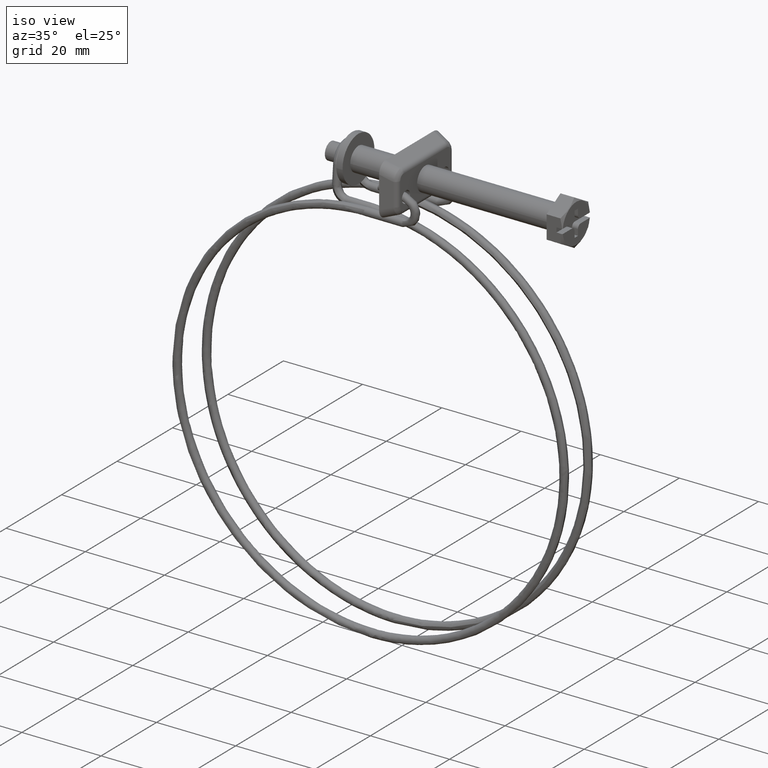
[diagram: clean part render]
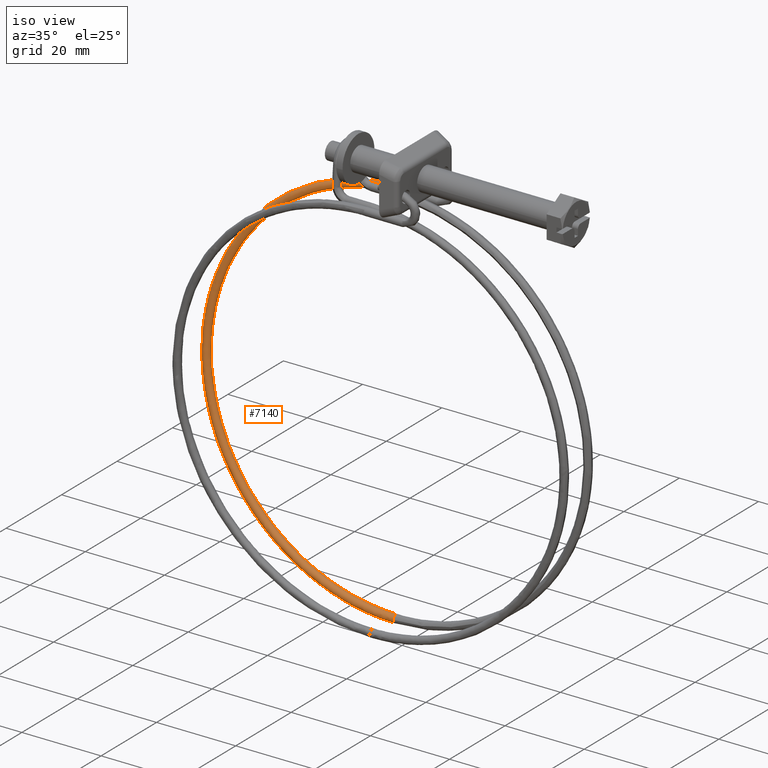
[diagram: same view with one face highlighted and labeled with its STEP entity id]
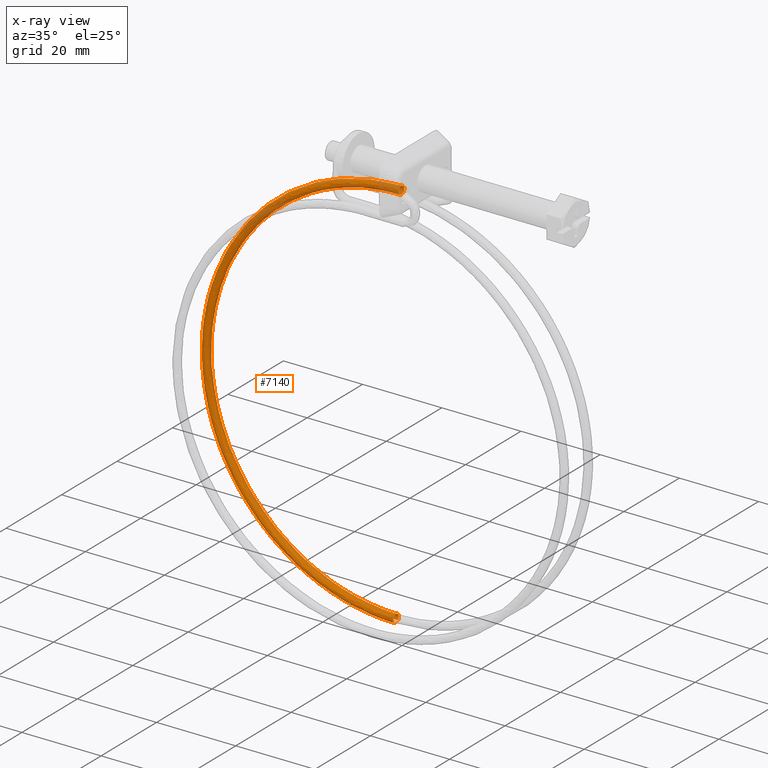
[diagram: x-ray of the same camera — body ghosted, the highlighted face saturated]
A machine part, iso view. The second image highlights one B-rep face of the part: STEP entity #7140.
The next image is the same camera in x-ray: the body ghosted, the highlighted face saturated — about 8% of this face is hidden behind the body in this view.
In plain terms, the highlighted face is a freeform B-spline surface patch.
Its self-contained STEP definition (entity closure, byte-faithful):
#4406=CARTESIAN_POINT('',(-44.550000000001013,5.997616362328278,-6.900553868632652));
#4407=VERTEX_POINT('',#4406);
#4408=CARTESIAN_POINT('',(-44.550000000001013,6.351426395837967,-6.850859404055653));
#4409=VERTEX_POINT('',#4408);
#4410=CARTESIAN_POINT('',(-44.550000000001013,5.997616362328278,-6.900553868632652));
#4411=CARTESIAN_POINT('',(-44.550000000001013,6.111384008571020,-6.863181264922809));
#4412=CARTESIAN_POINT('',(-44.550000000001013,6.231704666802331,-6.845746385737686));
#4413=CARTESIAN_POINT('',(-44.550000000001013,6.351426395837967,-6.850859404055653));
#4414=B_SPLINE_CURVE_WITH_KNOTS('',3,(#4410,#4411,#4412,#4413),.UNSPECIFIED.,.F.,.U.,(4,4),(0.942811831421861,1.0),.UNSPECIFIED.);
#4415=EDGE_CURVE('',#4407,#4409,#4414,.T.);
#4468=CARTESIAN_POINT('',(-44.549999999374727,5.310232866336376,-7.869648376759071));
#4469=VERTEX_POINT('',#4468);
#4475=CARTESIAN_POINT('',(-44.550000000001013,6.268575415068714,-8.849142595944528));
#4476=VERTEX_POINT('',#4475);
#4477=CARTESIAN_POINT('',(-44.550000000001013,6.268575415068714,-8.849142595944528));
#4478=CARTESIAN_POINT('',(-44.549999999913858,6.006995341889742,-8.838297547081888));
#4479=CARTESIAN_POINT('',(-44.549999999793513,5.751488491244450,-8.719838742837499));
#4480=CARTESIAN_POINT('',(-44.549999999563617,5.410683382595896,-8.349566788580003));
#4481=CARTESIAN_POINT('',(-44.549999999455238,5.315545804361695,-8.110863919542913));
#4482=CARTESIAN_POINT('',(-44.549999999374727,5.310232866336376,-7.869648376759071));
#4483=B_SPLINE_CURVE_WITH_KNOTS('',3,(#4477,#4478,#4479,#4480,#4481,#4482),.UNSPECIFIED.,.F.,.U.,(4,2,4),(0.500000000000000,0.625000000000000,0.740274391635181),.UNSPECIFIED.);
#4484=EDGE_CURVE('',#4476,#4469,#4483,.T.);
#4486=CARTESIAN_POINT('',(-44.550000000001013,7.066681206299512,-7.196249796183009));
#4487=VERTEX_POINT('',#4486);
#4488=CARTESIAN_POINT('',(-44.550000000001013,7.066681206299512,-7.196249796183009));
#4489=CARTESIAN_POINT('',(-44.550000000001013,7.230665532946784,-7.386573870000847));
#4490=CARTESIAN_POINT('',(-44.550000000000992,7.319553846201949,-7.640315216456886));
#4491=CARTESIAN_POINT('',(-44.550000000001013,7.298297333375800,-8.153001148527638));
#4492=CARTESIAN_POINT('',(-44.550000000001020,7.179838364557108,-8.408500520314938));
#4493=CARTESIAN_POINT('',(-44.550000000001013,6.794578551735394,-8.763085565730867));
#4494=CARTESIAN_POINT('',(-44.550000000001013,6.530150073211630,-8.859987763966505));
#4495=CARTESIAN_POINT('',(-44.550000000001013,6.268575415068711,-8.849142595944528));
#4496=B_SPLINE_CURVE_WITH_KNOTS('',3,(#4488,#4489,#4490,#4491,#4492,#4493,#4494,#4495),.UNSPECIFIED.,.F.,.U.,(4,2,2,4),(0.130000190141398,0.250000000000001,0.375000000000001,0.500000000000000),.UNSPECIFIED.);
#4497=EDGE_CURVE('',#4487,#4476,#4496,.T.);
#4525=CARTESIAN_POINT('',(-44.549999999374727,5.310232866336376,-7.869648376759071));
#4526=CARTESIAN_POINT('',(-44.549999999383353,5.309783493014188,-7.849290882775227));
#4527=CARTESIAN_POINT('',(-44.549999999392163,5.309973457286755,-7.828915354592088));
#4528=CARTESIAN_POINT('',(-44.549999999516949,5.321640020905194,-7.546897328365557));
#4529=CARTESIAN_POINT('',(-44.549999999662958,5.440072767325695,-7.291290795225113));
#4530=CARTESIAN_POINT('',(-44.549999999871197,5.737165964685468,-7.017665174941764));
#4531=CARTESIAN_POINT('',(-44.549999999940717,5.862784524697105,-6.945092813310755));
#4532=CARTESIAN_POINT('',(-44.550000000001013,5.997616362328278,-6.900553868632652));
#4533=B_SPLINE_CURVE_WITH_KNOTS('',3,(#4525,#4526,#4527,#4528,#4529,#4530,#4531,#4532),.UNSPECIFIED.,.F.,.U.,(4,2,2,4),(0.740274391635181,0.750000000000000,0.875000000000000,0.942811831421861),.UNSPECIFIED.);
#4534=EDGE_CURVE('',#4469,#4407,#4533,.T.);
#6104=CARTESIAN_POINT('',(-44.549999999999052,4.300002000002107,-103.850001000000010));
#6105=VERTEX_POINT('',#6104);
#6106=CARTESIAN_POINT('',(-44.549999999922072,3.302485887032278,-104.780271342116290));
#6107=VERTEX_POINT('',#6106);
#6108=CARTESIAN_POINT('',(-44.549999999999052,4.300002000002107,-103.850001000000010));
#6109=CARTESIAN_POINT('',(-44.549999999988252,4.038195655371372,-103.850000495566110));
#6110=CARTESIAN_POINT('',(-44.549999999973359,3.777998799464806,-103.957772896960290));
#6111=CARTESIAN_POINT('',(-44.549999999945143,3.424196145411115,-104.311556064557190));
#6112=CARTESIAN_POINT('',(-44.549999999931927,3.319730377689378,-104.542534340344900));
#6113=CARTESIAN_POINT('',(-44.549999999922072,3.302485887032278,-104.780271342116290));
#6114=B_SPLINE_CURVE_WITH_KNOTS('',3,(#6108,#6109,#6110,#6111,#6112,#6113),.UNSPECIFIED.,.F.,.U.,(4,2,4),(0.500000000000000,0.625000000000000,0.738888458198832),.UNSPECIFIED.);
#6115=EDGE_CURVE('',#6105,#6107,#6114,.T.);
#6136=CARTESIAN_POINT('',(-44.550013567226713,4.287434287090918,-105.849920169598700));
#6137=VERTEX_POINT('',#6136);
#6153=CARTESIAN_POINT('',(-44.549999999999052,4.300002000002107,-105.850001000000010));
#6154=VERTEX_POINT('',#6153);
#6155=CARTESIAN_POINT('',(-44.550013567226713,4.287434287090918,-105.849920169598700));
#6156=CARTESIAN_POINT('',(-44.550009045284433,4.291622911119429,-105.849974632451800));
#6157=CARTESIAN_POINT('',(-44.550004522766592,4.295812249115727,-105.850001617474210));
#6158=CARTESIAN_POINT('',(-44.549999999999052,4.300002000002107,-105.850001000000010));
#6159=B_SPLINE_CURVE_WITH_KNOTS('',3,(#6155,#6156,#6157,#6158),.UNSPECIFIED.,.F.,.U.,(4,4),(0.997999545185233,1.0),.UNSPECIFIED.);
#6160=EDGE_CURVE('',#6137,#6154,#6159,.T.);
#6162=CARTESIAN_POINT('',(-44.549999999999052,5.028950799201402,-105.534536873659500));
#6163=VERTEX_POINT('',#6162);
#6173=CARTESIAN_POINT('',(-44.549999999999052,5.028950799201402,-105.534536873659500));
#6174=CARTESIAN_POINT('',(-44.549999999999052,5.200678629127689,-105.351169305945310));
#6175=CARTESIAN_POINT('',(-44.549999999999052,5.300002000002110,-105.101328014056090));
#6176=CARTESIAN_POINT('',(-44.549999999999052,5.300002000002110,-104.588201612201000));
#6177=CARTESIAN_POINT('',(-44.549999999999052,5.192228903611920,-104.328014341236790));
#6178=CARTESIAN_POINT('',(-44.549999999999052,4.821988658765391,-103.957774096390200));
#6179=CARTESIAN_POINT('',(-44.549999999999052,4.561801387801260,-103.850001000000010));
#6180=CARTESIAN_POINT('',(-44.549999999999052,4.300002000002107,-103.850001000000010));
#6181=B_SPLINE_CURVE_WITH_KNOTS('',3,(#6173,#6174,#6175,#6176,#6177,#6178,#6179,#6180),.UNSPECIFIED.,.F.,.U.,(4,2,2,4),(0.130000190141371,0.250000000000000,0.375000000000000,0.500000000000000),.UNSPECIFIED.);
#6182=EDGE_CURVE('',#6163,#6105,#6181,.T.);
#6235=CARTESIAN_POINT('',(-44.549999999922072,3.302485887032278,-104.780271342116290));
#6236=CARTESIAN_POINT('',(-44.550000148507991,3.300804588169331,-104.803466287269300));
#6237=CARTESIAN_POINT('',(-44.550000302782962,3.299953544922329,-104.826725569222700));
#6238=CARTESIAN_POINT('',(-44.550002259588823,3.299960689550695,-105.111797701208700));
#6239=CARTESIAN_POINT('',(-44.550004726756313,3.407742793985734,-105.371985962489600));
#6240=CARTESIAN_POINT('',(-44.550009569201791,3.775038123896113,-105.739265555563700));
#6241=CARTESIAN_POINT('',(-44.550011916213371,4.029887899585490,-105.846532856363200));
#6242=CARTESIAN_POINT('',(-44.550013567226713,4.287434287090918,-105.849920169598700));
#6243=B_SPLINE_CURVE_WITH_KNOTS('',3,(#6235,#6236,#6237,#6238,#6239,#6240,#6241,#6242),.UNSPECIFIED.,.F.,.U.,(4,2,2,4),(0.738888458198832,0.750000000000000,0.875000000000000,0.997999545185233),.UNSPECIFIED.);
#6244=EDGE_CURVE('',#6107,#6137,#6243,.T.);
#6799=CARTESIAN_POINT('',(-44.550000000000999,7.066680426793061,-7.196248891469288));
#6800=CARTESIAN_POINT('',(-44.550000000000999,7.230665251257104,-7.386573065887060));
#6801=CARTESIAN_POINT('',(-44.550000000000999,7.319553862699094,-7.640314818567237));
#6802=CARTESIAN_POINT('',(-44.550000000000999,7.298297333376170,-8.153001148527350));
#6803=CARTESIAN_POINT('',(-44.550000000000999,7.179838364557550,-8.408500520314682));
#6804=CARTESIAN_POINT('',(-44.550000000000999,6.794578551735941,-8.763085565730719));
#6805=CARTESIAN_POINT('',(-44.550000000000999,6.530150073212200,-8.859987763966451));
#6806=CARTESIAN_POINT('',(-44.550000000000999,6.007000756926360,-8.838297427922651));
#6807=CARTESIAN_POINT('',(-44.550000000000999,5.751501385139030,-8.719838459104009));
#6808=CARTESIAN_POINT('',(-44.550000000000999,5.396916339722990,-8.334578646282399));
#6809=CARTESIAN_POINT('',(-44.550000000000999,5.300014141487280,-8.070150167758669));
#6810=CARTESIAN_POINT('',(-44.550000000000999,5.321704477531080,-7.547000851472840));
#6811=CARTESIAN_POINT('',(-44.550000000000999,5.440163446349700,-7.291501479685490));
#6812=CARTESIAN_POINT('',(-44.550000000000999,5.825423259171310,-6.936916434269469));
#6813=CARTESIAN_POINT('',(-44.550000000000999,6.089851737695040,-6.840014236033750));
#6814=CARTESIAN_POINT('',(-44.550000000000999,6.351426395837965,-6.850859404055650));
#6815=CARTESIAN_POINT('',(-50.987499832665677,7.066915735005575,-7.196282301951801));
#6816=CARTESIAN_POINT('',(-50.963026506136039,7.230900117770788,-7.386606286285936));
#6817=CARTESIAN_POINT('',(-50.930046491102694,7.319788130262916,-7.640347783362363));
#6818=CARTESIAN_POINT('',(-50.862865305393598,7.298530371214090,-8.153033593948761));
#6819=CARTESIAN_POINT('',(-50.829092643335798,7.180070779128469,-8.408532705351661));
#6820=CARTESIAN_POINT('',(-50.781623351919897,6.794810084559070,-8.763117385595100));
#6821=CARTESIAN_POINT('',(-50.768219030403714,6.530381355828220,-8.860019480842210));
#6822=CARTESIAN_POINT('',(-50.769639545012197,6.007232066086510,-8.838329155697069));
#6823=CARTESIAN_POINT('',(-50.784455633746802,5.751732970760631,-8.719870300716250));
#6824=CARTESIAN_POINT('',(-50.833933836118000,5.397148843845370,-8.334610868643718));
#6825=CARTESIAN_POINT('',(-50.868291271310397,5.300247279138930,-8.070182655023469));
#6826=CARTESIAN_POINT('',(-50.936843501658799,5.321938868923500,-7.547033868861610));
#6827=CARTESIAN_POINT('',(-50.970616163616093,5.440398450392510,-7.291534758980020));
#6828=CARTESIAN_POINT('',(-51.018085455095203,5.825659118809660,-6.936950082378139));
#6829=CARTESIAN_POINT('',(-51.031489776610400,6.090087837780841,-6.840047988402469));
#6830=CARTESIAN_POINT('',(-51.030779519322699,6.351662483191140,-6.850893150899625));
#6831=CARTESIAN_POINT('',(-57.420287667952159,7.040160536493776,-8.476068705283154));
#6832=CARTESIAN_POINT('',(-57.371359147926093,7.204246185364460,-8.661527221719924));
#6833=CARTESIAN_POINT('',(-57.305423553692748,7.293270666792585,-8.908712061435637));
#6834=CARTESIAN_POINT('',(-57.171110958888612,7.272290908308770,-9.408041781659460));
#6835=CARTESIAN_POINT('',(-57.103590658178490,7.153971074998200,-9.656826650507229));
#6836=CARTESIAN_POINT('',(-57.008687246732087,6.768906824603290,-10.001974101356121));
#6837=CARTESIAN_POINT('',(-56.981888535479598,6.504533568767150,-10.096211322928699));
#6838=CARTESIAN_POINT('',(-56.984728512053898,5.981378400292120,-10.074803406141539));
#6839=CARTESIAN_POINT('',(-57.014349711911699,5.725817989669720,-9.959290094037028));
#6840=CARTESIAN_POINT('',(-57.113269456839113,5.371029105578799,-9.583867276986018));
#6841=CARTESIAN_POINT('',(-57.181958870601314,5.273985362706540,-9.326269562836391));
#6842=CARTESIAN_POINT('',(-57.319012538724813,5.295393279523999,-8.816749440159020));
#6843=CARTESIAN_POINT('',(-57.386532839567103,5.413713112837330,-8.567964571223129));
#6844=CARTESIAN_POINT('',(-57.481436250925412,5.798777363229480,-8.222817120506409));
#6845=CARTESIAN_POINT('',(-57.508234962177902,6.063150619071130,-8.128579898977879));
#6846=CARTESIAN_POINT('',(-57.506814973868700,6.324728203308645,-8.139283857371465));
#6847=CARTESIAN_POINT('',(-69.313016757442796,6.938080937013234,-13.402300635403069));
#6848=CARTESIAN_POINT('',(-69.218880167263052,7.102554623119417,-13.569032967414421));
#6849=CARTESIAN_POINT('',(-69.092022620671386,7.192102019717133,-13.790982584350910));
#6850=CARTESIAN_POINT('',(-68.833610355439802,7.172187453645040,-14.238907471081481));
#6851=CARTESIAN_POINT('',(-68.703703894233101,7.054403103328630,-14.461850609947920));
#6852=CARTESIAN_POINT('',(-68.521113381756109,6.670091503074239,-14.770676120203239));
#6853=CARTESIAN_POINT('',(-68.469553692164993,6.405930779671531,-14.854656795925919));
#6854=CARTESIAN_POINT('',(-68.475017697999789,5.882753088204070,-14.834335810105021));
#6855=CARTESIAN_POINT('',(-68.532007746860089,5.626957760838820,-14.730159281907859));
#6856=CARTESIAN_POINT('',(-68.722325530400809,5.271384374291730,-14.392595557843380));
#6857=CARTESIAN_POINT('',(-68.854481320073205,5.173795876543420,-14.161287023027560));
#6858=CARTESIAN_POINT('',(-69.118167305047507,5.194116862334030,-13.704220812078020));
#6859=CARTESIAN_POINT('',(-69.248073766122090,5.311901212647680,-13.481277673299660));
#6860=CARTESIAN_POINT('',(-69.430664278687203,5.696212812904820,-13.172452162912199));
#6861=CARTESIAN_POINT('',(-69.482223968278305,5.960373536302030,-13.088471487145460));
#6862=CARTESIAN_POINT('',(-69.479491965382906,6.221962382035760,-13.098631980055909));
#6863=CARTESIAN_POINT('',(-74.767228198991702,6.862561502565638,-17.046772705250739));
#6864=CARTESIAN_POINT('',(-74.652360653488557,7.027322244265998,-17.199652098428491));
#6865=CARTESIAN_POINT('',(-74.497566274677411,7.117256474174763,-17.402933630884011));
#6866=CARTESIAN_POINT('',(-74.182245923941593,7.098129898042820,-17.812831122643349));
#6867=CARTESIAN_POINT('',(-74.023731192333912,6.980741678253801,-18.016657505054951));
#6868=CARTESIAN_POINT('',(-73.800930218090599,6.596986860733460,-18.298613387097401));
#6869=CARTESIAN_POINT('',(-73.738015946743900,6.332983360981660,-18.375006649411151));
#6870=CARTESIAN_POINT('',(-73.744683247171793,5.809789007837610,-18.355489735001800));
#6871=CARTESIAN_POINT('',(-73.814223762999802,5.553819897757020,-18.259699740155451));
#6872=CARTESIAN_POINT('',(-74.046453723920393,5.197666165302140,-17.950142773127350));
#6873=CARTESIAN_POINT('',(-74.207713135791494,5.099674678034741,-17.738282000906899));
#6874=CARTESIAN_POINT('',(-74.529468595726001,5.119191592452340,-17.320019254213651));
#6875=CARTESIAN_POINT('',(-74.687983327333697,5.236579812238611,-17.116192871758049));
#6876=CARTESIAN_POINT('',(-74.910784301665103,5.620334629758941,-16.834236989759649));
#6877=CARTESIAN_POINT('',(-74.973698573011816,5.884338129519009,-16.757843727401799));
#6878=CARTESIAN_POINT('',(-74.970364922753802,6.145935306088274,-16.767602184606471));
#6879=CARTESIAN_POINT('',(-83.869330599451629,6.673947859150450,-26.149027781148380));
#6880=CARTESIAN_POINT('',(-83.719870819008733,6.839425420680579,-26.267314359152270));
#6881=CARTESIAN_POINT('',(-83.518460283136648,6.930325629966459,-26.423978952590410));
#6882=CARTESIAN_POINT('',(-83.108181555687096,6.913166780046550,-26.738916474789502));
#6883=CARTESIAN_POINT('',(-82.901930286886810,6.796767756133350,-26.895005519579499));
#6884=CARTESIAN_POINT('',(-82.612033044412811,6.414403306584910,-27.109864007732899));
#6885=CARTESIAN_POINT('',(-82.530172209302194,6.150792417256709,-27.167310388631250));
#6886=CARTESIAN_POINT('',(-82.538847360026395,5.627556457467640,-27.149801358089700));
#6887=CARTESIAN_POINT('',(-82.629329925560214,5.371153386510320,-27.074953764348251));
#6888=CARTESIAN_POINT('',(-82.931495683856198,5.013550445405641,-26.835333767671251));
#6889=CARTESIAN_POINT('',(-83.141318190397200,4.914552634346550,-26.672036904648049));
#6890=CARTESIAN_POINT('',(-83.559969953100804,4.932061664879810,-26.350672086077552));
#6891=CARTESIAN_POINT('',(-83.766221221901006,5.048460688795770,-26.194583041331601));
#6892=CARTESIAN_POINT('',(-84.056118464286897,5.430825138344200,-25.979724553134151));
#6893=CARTESIAN_POINT('',(-84.137979299397600,5.694436027664150,-25.922278172279849));
#6894=CARTESIAN_POINT('',(-84.133641724079553,5.956054007561439,-25.931032687550601));
#6895=CARTESIAN_POINT('',(-87.513643647100281,6.560927856132937,-31.603229701353619));
#6896=CARTESIAN_POINT('',(-87.350336021627285,6.726834896505610,-31.700790175375460));
#6897=CARTESIAN_POINT('',(-87.130264265659960,6.818313867268538,-31.829524474263909));
#6898=CARTESIAN_POINT('',(-86.681972126019204,6.802333970188020,-32.087567228307847));
#6899=CARTESIAN_POINT('',(-86.456611130235387,6.686527617804781,-32.215054697220253));
#6900=CARTESIAN_POINT('',(-86.139854139412193,6.304996199942631,-32.389712133597747));
#6901=CARTESIAN_POINT('',(-86.050408680912497,6.041620541100049,-32.435806589738498));
#6902=CARTESIAN_POINT('',(-86.059887607305399,5.518359652908900,-32.419500572309403));
#6903=CARTESIAN_POINT('',(-86.158753622589899,5.261696576570761,-32.357200508460402));
#6904=CARTESIAN_POINT('',(-86.488915839685291,4.903225349695730,-32.159482881098562));
#6905=CARTESIAN_POINT('',(-86.718178957783408,4.803624605012449,-32.025282829687249));
#6906=CARTESIAN_POINT('',(-87.175619916600496,4.819930622438800,-31.761973896989350));
#6907=CARTESIAN_POINT('',(-87.400980912296092,4.935736974824790,-31.634486428076951));
#6908=CARTESIAN_POINT('',(-87.717737903119286,5.317268392689700,-31.459828991721501));
#6909=CARTESIAN_POINT('',(-87.807183361575099,5.580644051526770,-31.413734535580740));
#6910=CARTESIAN_POINT('',(-87.802443898378655,5.842274495622345,-31.421887544295299));
#6911=CARTESIAN_POINT('',(-92.439590233851959,6.314496523782694,-43.495693073031283));
#6912=CARTESIAN_POINT('',(-92.257565916844186,6.481339907891404,-43.548066786568967));
#6913=CARTESIAN_POINT('',(-92.012271730533342,6.574080686308165,-43.615907849740161));
#6914=CARTESIAN_POINT('',(-91.512600816278095,6.560671125649650,-43.749909430037512));
#6915=CARTESIAN_POINT('',(-91.261411190513400,6.446156907395769,-43.815040145501399));
#6916=CARTESIAN_POINT('',(-90.908350672111212,6.066441653487050,-43.902051813691102));
#6917=CARTESIAN_POINT('',(-90.808653867105505,5.803578840855680,-43.923396963168607));
#6918=CARTESIAN_POINT('',(-90.819219173520608,5.280263604107930,-43.909713738006843));
#6919=CARTESIAN_POINT('',(-90.929416225516903,5.023033667682250,-43.874769622385863));
#6920=CARTESIAN_POINT('',(-91.297418343531405,4.662669416383690,-43.768406951583302));
#6921=CARTESIAN_POINT('',(-91.552957314078796,4.561754164281550,-43.697643359908199));
#6922=CARTESIAN_POINT('',(-92.062825593931095,4.575437389446050,-43.560907053482303));
#6923=CARTESIAN_POINT('',(-92.314015219783897,4.689951607697179,-43.495776338018402));
#6924=CARTESIAN_POINT('',(-92.667075738186099,5.069666861603140,-43.408764669806637));
#6925=CARTESIAN_POINT('',(-92.766772543235902,5.332529674240019,-43.387419520329203));
#6926=CARTESIAN_POINT('',(-92.761489890028344,5.594187292613895,-43.394261132910067));
#6927=CARTESIAN_POINT('',(-93.719288072231564,6.181182101077864,-49.929277933367551));
#6928=CARTESIAN_POINT('',(-93.532402050985965,6.348531983701212,-49.957208671379412));
#6929=CARTESIAN_POINT('',(-93.280556279781578,6.441955314546340,-49.992110620216309));
#6930=CARTESIAN_POINT('',(-92.767539609045002,6.429936131723230,-50.059014330709900));
#6931=CARTESIAN_POINT('',(-92.509640936412794,6.316120870478200,-50.090414267924501));
#6932=CARTESIAN_POINT('',(-92.147150492115799,5.937388038215790,-50.130015514523798));
#6933=CARTESIAN_POINT('',(-92.044790875967891,5.674802640618689,-50.137972966094203));
#6934=CARTESIAN_POINT('',(-92.055638372123411,5.151458004987230,-50.125708493814699));
#6935=CARTESIAN_POINT('',(-92.168778687359904,4.893921435666660,-50.105562092547487));
#6936=CARTESIAN_POINT('',(-92.546609807837598,4.532533186426620,-50.048616262903799));
#6937=CARTESIAN_POINT('',(-92.808973992244290,4.430906874889420,-50.012167497426397));
#6938=CARTESIAN_POINT('',(-93.332460390955106,4.443171347157900,-49.943898405108101));
#6939=CARTESIAN_POINT('',(-93.590359063587300,4.556986608402930,-49.912498467893499));
#6940=CARTESIAN_POINT('',(-93.952849507884196,4.935719440665330,-49.872897221250099));
#6941=CARTESIAN_POINT('',(-94.055209124032089,5.198304838262440,-49.864939769701699));
#6942=CARTESIAN_POINT('',(-94.049785375954400,5.459977156076795,-49.871072005841462));
#6943=CARTESIAN_POINT('',(-93.719288072231564,5.914448382427985,-62.801508703408473));
#6944=CARTESIAN_POINT('',(-93.532402050985965,6.082811655751605,-62.780534492208822));
#6945=CARTESIAN_POINT('',(-93.280556279781578,6.177600621981673,-62.749532610640038));
#6946=CARTESIAN_POINT('',(-92.767539609045002,6.168363275481860,-62.682188430020311));
#6947=CARTESIAN_POINT('',(-92.509640936412794,6.055946471518080,-62.646100593628887));
#6948=CARTESIAN_POINT('',(-92.147150492115799,5.679179246112340,-62.590844147599107));
#6949=CARTESIAN_POINT('',(-92.044790875967891,5.417148894221570,-62.572015797874187));
#6950=CARTESIAN_POINT('',(-92.055638372123411,4.893745437968890,-62.562589934109901));
#6951=CARTESIAN_POINT('',(-92.168778687359904,4.635595364538000,-62.572050462948702));
#6952=CARTESIAN_POINT('',(-92.546609807837598,4.272158323515476,-62.613976724617302));
#6953=CARTESIAN_POINT('',(-92.808973992244290,4.169109340426770,-62.646184282535103));
#6954=CARTESIAN_POINT('',(-93.332460390955106,4.178535204202090,-62.714902834165912));
#6955=CARTESIAN_POINT('',(-93.590359063587300,4.290952008165870,-62.750990670557300));
#6956=CARTESIAN_POINT('',(-93.952849507884196,4.667719233571610,-62.806247116631198));
#6957=CARTESIAN_POINT('',(-94.055209124032089,4.929749585462380,-62.825075466333992));
#6958=CARTESIAN_POINT('',(-94.049785375954400,5.191451313590094,-62.829788398216152));
#6959=CARTESIAN_POINT('',(-92.439590233850950,5.781133959731418,-69.235093563735106));
#6960=CARTESIAN_POINT('',(-92.257565916839894,5.950003731569685,-69.189676377019282));
#6961=CARTESIAN_POINT('',(-92.012271730487655,6.045475250228219,-69.125735381115021));
#6962=CARTESIAN_POINT('',(-91.512600816189106,6.037628281569200,-68.991293330626604));
#6963=CARTESIAN_POINT('',(-91.261411190468607,5.925910434614281,-68.921474716007907));
#6964=CARTESIAN_POINT('',(-90.908350672066305,5.550125630846590,-68.818807848431803));
#6965=CARTESIAN_POINT('',(-90.808653867016602,5.288372693995600,-68.786591800777799));
#6966=CARTESIAN_POINT('',(-90.819219173431591,4.764939838859211,-68.778584689917793));
#6967=CARTESIAN_POINT('',(-90.929416225516107,4.506483132530670,-68.802842933088286));
#6968=CARTESIAN_POINT('',(-91.297418343530595,4.142022093569415,-68.894186035959905));
#6969=CARTESIAN_POINT('',(-91.552957314033904,4.038262051042900,-68.960708420031295));
#6970=CARTESIAN_POINT('',(-92.062825593930299,4.046269161922201,-69.097894185791688));
#6971=CARTESIAN_POINT('',(-92.314015219739005,4.157987008877121,-69.167712800454495));
#6972=CARTESIAN_POINT('',(-92.667075738141207,4.533771812644810,-69.270379668074597));
#6973=CARTESIAN_POINT('',(-92.766772543191010,4.795524749493050,-69.302595715684603));
#6974=CARTESIAN_POINT('',(-92.761489889983451,5.057241177061245,-69.306599271136605));
#6975=CARTESIAN_POINT('',(-87.513643647099698,5.534702627364654,-81.127556935432196));
#6976=CARTESIAN_POINT('',(-87.350336021629943,5.704508742938941,-81.036952988212889));
#6977=CARTESIAN_POINT('',(-87.130264265704142,5.801242069251097,-80.912118756593827));
#6978=CARTESIAN_POINT('',(-86.681972126106515,5.795965437003290,-80.653635532488494));
#6979=CARTESIAN_POINT('',(-86.456611130278688,5.685539724177719,-80.521460164377189));
#6980=CARTESIAN_POINT('',(-86.139854139455494,5.311571084379990,-80.331147528525207));
#6981=CARTESIAN_POINT('',(-86.050408680999809,5.050330993729200,-80.274182174251990));
#6982=CARTESIAN_POINT('',(-86.059887607392596,4.526843790036200,-80.268797855615304));
#6983=CARTESIAN_POINT('',(-86.158753622589103,4.267820223625636,-80.320412047057800));
#6984=CARTESIAN_POINT('',(-86.488915839684509,3.901466160235345,-80.503110106400598));
#6985=CARTESIAN_POINT('',(-86.718178957826609,3.796391610295475,-80.633068950296291));
#6986=CARTESIAN_POINT('',(-87.175619916599700,3.801775928912930,-80.896827342284709));
#6987=CARTESIAN_POINT('',(-87.400980912339392,3.912201641738494,-81.029002710351804));
#6988=CARTESIAN_POINT('',(-87.717737903162586,4.286170281536226,-81.219315346159789));
#6989=CARTESIAN_POINT('',(-87.807183361618286,4.547410372189780,-81.276280700477102));
#6990=CARTESIAN_POINT('',(-87.802443898421842,4.809153974036275,-81.278972859773390));
#6991=CARTESIAN_POINT('',(-83.869330599516502,5.421682624351810,-86.581758855648914));
#6992=CARTESIAN_POINT('',(-83.719870819057462,5.591918218768854,-86.470428804470060));
#6993=CARTESIAN_POINT('',(-83.518460283225281,5.689230306560769,-86.317664278218629));
#6994=CARTESIAN_POINT('',(-83.108181555732997,5.685132627160450,-86.002286285892907));
#6995=CARTESIAN_POINT('',(-82.901930287065198,5.575299585862100,-85.841509342057989));
#6996=CARTESIAN_POINT('',(-82.612033044503406,5.202163977747900,-85.610995654385803));
#6997=CARTESIAN_POINT('',(-82.530172209436898,4.941159117579980,-85.542678375376894));
#6998=CARTESIAN_POINT('',(-82.538847360161100,4.417646985484906,-85.538497069874609));
#6999=CARTESIAN_POINT('',(-82.629329925694705,4.158363413688010,-85.602658791143710));
#7000=CARTESIAN_POINT('',(-82.931495683990406,3.791141064532870,-85.827259219845914));
#7001=CARTESIAN_POINT('',(-83.141318190443101,3.685463580966060,-85.986314875353813));
#7002=CARTESIAN_POINT('',(-83.559969953190304,3.689644886473830,-86.308129153237218));
#7003=CARTESIAN_POINT('',(-83.766221221902214,3.799477927772175,-86.468906097072008));
#7004=CARTESIAN_POINT('',(-84.056118464419995,4.172613535889131,-86.699419784744293));
#7005=CARTESIAN_POINT('',(-84.137979299486503,4.433618396057055,-86.767737063797298));
#7006=CARTESIAN_POINT('',(-84.133641724168399,4.695374462104593,-86.769827716548448));
#7007=CARTESIAN_POINT('',(-74.767228198924073,5.233068980943830,-95.684013931503060));
#7008=CARTESIAN_POINT('',(-74.652360653437029,5.404021395190228,-95.538091065124661));
#7009=CARTESIAN_POINT('',(-74.497566274585992,5.502299462354055,-95.338709600018689));
#7010=CARTESIAN_POINT('',(-74.182245923892907,5.500169509160370,-94.928371638133598));
#7011=CARTESIAN_POINT('',(-74.023731192152809,5.391325663743330,-94.719857356413300));
#7012=CARTESIAN_POINT('',(-73.800930217997404,5.019580423590011,-94.422246275028812));
#7013=CARTESIAN_POINT('',(-73.738015946606495,4.758968173862210,-94.334982114516606));
#7014=CARTESIAN_POINT('',(-73.744683247034402,4.235414435122110,-94.332808692882097));
#7015=CARTESIAN_POINT('',(-73.814223762862611,3.975696902453990,-94.417912815344010));
#7016=CARTESIAN_POINT('',(-74.046453723783500,3.607025344643565,-94.712450214396711));
#7017=CARTESIAN_POINT('',(-74.207713135742807,3.500341537285065,-94.920069779013204));
#7018=CARTESIAN_POINT('',(-74.529468595633801,3.502514958914030,-95.338781985018514));
#7019=CARTESIAN_POINT('',(-74.687983327329803,3.611358804331065,-95.547296266738797));
#7020=CARTESIAN_POINT('',(-74.910784301529304,3.983104044481635,-95.844907348123300));
#7021=CARTESIAN_POINT('',(-74.973698572920199,4.243716294209441,-95.932171508591495));
#7022=CARTESIAN_POINT('',(-74.970364922662213,4.505493163579491,-95.933258219408714));
#7023=CARTESIAN_POINT('',(-69.313016757426738,5.157549546502891,-99.328486001393074));
#7024=CARTESIAN_POINT('',(-69.218880167224086,5.328789016344695,-99.168710196190801));
#7025=CARTESIAN_POINT('',(-69.092022620591592,5.427453916819676,-98.950660646482845));
#7026=CARTESIAN_POINT('',(-68.833610355359397,5.426111953571549,-98.502295289669405));
#7027=CARTESIAN_POINT('',(-68.703703894240391,5.317664238676390,-98.274664251714398));
#7028=CARTESIAN_POINT('',(-68.521113381719019,4.946475781265380,-97.950183541940703));
#7029=CARTESIAN_POINT('',(-68.469553692083792,4.686020755177481,-97.855331968063595));
#7030=CARTESIAN_POINT('',(-68.475017697918602,4.162450354758041,-97.853962617796597));
#7031=CARTESIAN_POINT('',(-68.532007746778888,3.902559039370451,-97.947453273697406));
#7032=CARTESIAN_POINT('',(-68.722325530408199,3.533307135656350,-98.269997429742602));
#7033=CARTESIAN_POINT('',(-68.854481319992800,3.426220338782891,-98.497064756998697));
#7034=CARTESIAN_POINT('',(-69.118167304967713,3.427589689031960,-98.954580427216399));
#7035=CARTESIAN_POINT('',(-69.248073766086591,3.536037403927115,-99.182211465215502));
#7036=CARTESIAN_POINT('',(-69.430664278652102,3.907225861336750,-99.506692175077404));
#7037=CARTESIAN_POINT('',(-69.482223968243304,4.167680887428780,-99.601543748822294));
#7038=CARTESIAN_POINT('',(-69.479491965325906,4.429466087638501,-99.602228423955808));
#7039=CARTESIAN_POINT('',(-57.420287667964963,5.055469947001851,-104.254717931470400));
#7040=CARTESIAN_POINT('',(-57.371359147961883,5.227097454077121,-104.076215941849000));
#7041=CARTESIAN_POINT('',(-57.305423553769373,5.326285269726673,-103.832931169440900));
#7042=CARTESIAN_POINT('',(-57.171110958965798,5.326008498884870,-103.333160979047610));
#7043=CARTESIAN_POINT('',(-57.103590658167903,5.218096266989390,-103.079688210934800));
#7044=CARTESIAN_POINT('',(-57.008687246765902,4.847660459713400,-102.718885560743200));
#7045=CARTESIAN_POINT('',(-56.981888535557601,4.587417966064431,-102.613777441016200));
#7046=CARTESIAN_POINT('',(-56.984728512131902,4.063825042658070,-102.613495021803600));
#7047=CARTESIAN_POINT('',(-57.014349711989603,3.803698810530380,-102.718322461347600));
#7048=CARTESIAN_POINT('',(-57.113269456828412,3.433662404357355,-103.078725710467790));
#7049=CARTESIAN_POINT('',(-57.181958870678500,3.326030852599575,-103.332082217058000));
#7050=CARTESIAN_POINT('',(-57.319012538801402,3.326313271830045,-103.842051799092000));
#7051=CARTESIAN_POINT('',(-57.386532839599312,3.434225503725520,-104.095524567160790));
#7052=CARTESIAN_POINT('',(-57.481436250957302,3.804661311002885,-104.456327217264000));
#7053=CARTESIAN_POINT('',(-57.508234962209599,4.064903804647726,-104.561435337123400));
#7054=CARTESIAN_POINT('',(-57.506814973922452,4.326700266350903,-104.561576546729700));
#7055=CARTESIAN_POINT('',(-50.987499867709197,5.028950677041411,-105.534537755567600));
#7056=CARTESIAN_POINT('',(-50.963026540996267,5.200679005885223,-105.351170110371700));
#7057=CARTESIAN_POINT('',(-50.930046525707098,5.300002687980252,-105.101328426339610));
#7058=CARTESIAN_POINT('',(-50.862865339537493,5.300002680804290,-104.588201626253390));
#7059=CARTESIAN_POINT('',(-50.829092677313596,5.192229580822360,-104.328014353747800));
#7060=CARTESIAN_POINT('',(-50.781623385535902,4.821989330960200,-103.957774103747600));
#7061=CARTESIAN_POINT('',(-50.768219063891912,4.561802058602160,-103.850001003745010));
#7062=CARTESIAN_POINT('',(-50.769639578503387,4.038203283234695,-103.850000996431010));
#7063=CARTESIAN_POINT('',(-50.784455667335500,3.778016013886580,-103.957774089163390));
#7064=CARTESIAN_POINT('',(-50.833933870105703,3.407775774378810,-104.328014328765210));
#7065=CARTESIAN_POINT('',(-50.868291305465512,3.300002681675225,-104.588201598274590));
#7066=CARTESIAN_POINT('',(-50.936843536283902,3.300002688996235,-105.111800373873000));
#7067=CARTESIAN_POINT('',(-50.970616198507798,3.407775788978140,-105.371987646336000));
#7068=CARTESIAN_POINT('',(-51.018085490318612,3.778016038841635,-105.742227896383000));
#7069=CARTESIAN_POINT('',(-51.031489811929603,4.038203311202440,-105.850000996387000));
#7070=CARTESIAN_POINT('',(-51.030779554623813,4.300002698886186,-105.850001000044000));
#7071=CARTESIAN_POINT('',(-44.549999999999052,5.028949982885986,-105.534537745305000));
#7072=CARTESIAN_POINT('',(-44.549999999999052,5.200678314368910,-105.351170097699300));
#7073=CARTESIAN_POINT('',(-44.549999999999052,5.300002000002110,-105.101328412287200));
#7074=CARTESIAN_POINT('',(-44.549999999999052,5.300002000002110,-104.588201612201000));
#7075=CARTESIAN_POINT('',(-44.549999999999052,5.192228903611920,-104.328014341236790));
#7076=CARTESIAN_POINT('',(-44.549999999999052,4.821988658765391,-103.957774096390200));
#7077=CARTESIAN_POINT('',(-44.549999999999052,4.561801387801260,-103.850001000000010));
#7078=CARTESIAN_POINT('',(-44.549999999999052,4.038202612202954,-103.850001000000010));
#7079=CARTESIAN_POINT('',(-44.549999999999052,3.778015341238825,-103.957774096390200));
#7080=CARTESIAN_POINT('',(-44.549999999999052,3.407775096392295,-104.328014341236790));
#7081=CARTESIAN_POINT('',(-44.549999999999052,3.300002000002105,-104.588201612201000));
#7082=CARTESIAN_POINT('',(-44.549999999999052,3.300002000002105,-105.111800387799210));
#7083=CARTESIAN_POINT('',(-44.549999999999052,3.407775096392295,-105.371987658763400));
#7084=CARTESIAN_POINT('',(-44.549999999999052,3.778015341238825,-105.742227903610000));
#7085=CARTESIAN_POINT('',(-44.549999999999052,4.038202612202954,-105.850001000000010));
#7086=CARTESIAN_POINT('',(-44.549999999999052,4.300002000002107,-105.850001000000010));
#7087=B_SPLINE_SURFACE_WITH_KNOTS('',3,3,((#6799,#6815,#6831,#6847,#6863,#6879,#6895,#6911,#6927,#6943,#6959,#6975,#6991,#7007,#7023,#7039,#7055,#7071),(#6800,#6816,#6832,#6848,#6864,#6880,#6896,#6912,#6928,#6944,#6960,#6976,#6992,#7008,#7024,#7040,#7056,#7072),(#6801,#6817,#6833,#6849,#6865,#6881,#6897,#6913,#6929,#6945,#6961,#6977,#6993,#7009,#7025,#7041,#7057,#7073),(#6802,#6818,#6834,#6850,#6866,#6882,#6898,#6914,#6930,#6946,#6962,#6978,#6994,#7010,#7026,#7042,#7058,#7074),(#6803,#6819,#6835,#6851,#6867,#6883,#6899,#6915,#6931,#6947,#6963,#6979,#6995,#7011,#7027,#7043,#7059,#7075),(#6804,#6820,#6836,#6852,#6868,#6884,#6900,#6916,#6932,#6948,#6964,#6980,#6996,#7012,#7028,#7044,#7060,#7076),(#6805,#6821,#6837,#6853,#6869,#6885,#6901,#6917,#6933,#6949,#6965,#6981,#6997,#7013,#7029,#7045,#7061,#7077),(#6806,#6822,#6838,#6854,#6870,#6886,#6902,#6918,#6934,#6950,#6966,#6982,#6998,#7014,#7030,#7046,#7062,#7078),(#6807,#6823,#6839,#6855,#6871,#6887,#6903,#6919,#6935,#6951,#6967,#6983,#6999,#7015,#7031,#7047,#7063,#7079),(#6808,#6824,#6840,#6856,#6872,#6888,#6904,#6920,#6936,#6952,#6968,#6984,#7000,#7016,#7032,#7048,#7064,#7080),(#6809,#6825,#6841,#6857,#6873,#6889,#6905,#6921,#6937,#6953,#6969,#6985,#7001,#7017,#7033,#7049,#7065,#7081),(#6810,#6826,#6842,#6858,#6874,#6890,#6906,#6922,#6938,#6954,#6970,#6986,#7002,#7018,#7034,#7050,#7066,#7082),(#6811,#6827,#6843,#6859,#6875,#6891,#6907,#6923,#6939,#6955,#6971,#6987,#7003,#7019,#7035,#7051,#7067,#7083),(#6812,#6828,#6844,#6860,#6876,#6892,#6908,#6924,#6940,#6956,#6972,#6988,#7004,#7020,#7036,#7052,#7068,#7084),(#6813,#6829,#6845,#6861,#6877,#6893,#6909,#6925,#6941,#6957,#6973,#6989,#7005,#7021,#7037,#7053,#7069,#7085),(#6814,#6830,#6846,#6862,#6878,#6894,#6910,#6926,#6942,#6958,#6974,#6990,#7006,#7022,#7038,#7054,#7070,#7086)),.UNSPECIFIED.,.F.,.F.,.U.,(4,2,2,2,2,2,2,4),(4,2,2,2,2,2,2,2,4),(0.0,0.753982236861562,1.539380400259023,2.324778563656483,3.110176727053943,3.895574890451404,4.680973053848865,5.466371217246325),(0.0,19.442338663874239,38.884677327748442,58.327015991622652,77.769354655496841,97.211693319371221,116.654031983245400,136.096370647119390,155.538709310993800),.UNSPECIFIED.);
#7088=ORIENTED_EDGE('',*,*,#6182,.F.);
#7089=CARTESIAN_POINT('',(-44.550000000001013,7.066681206299512,-7.196249796183009));
#7090=CARTESIAN_POINT('',(-50.987499832665677,7.066916514512037,-7.196283206665007));
#7091=CARTESIAN_POINT('',(-57.420287667952159,7.040161316479275,-8.476069586878518));
#7092=CARTESIAN_POINT('',(-69.313016757442782,6.938081718842669,-13.402301428012169));
#7093=CARTESIAN_POINT('',(-74.767228198991702,6.862562285759235,-17.046773432026971));
#7094=CARTESIAN_POINT('',(-83.869330599451644,6.673948645751107,-26.149028343503680));
#7095=CARTESIAN_POINT('',(-87.513643647100281,6.560928644775155,-31.603230165185529));
#7096=CARTESIAN_POINT('',(-92.439590233851959,6.314497316876374,-43.495693322040601));
#7097=CARTESIAN_POINT('',(-93.719288072231564,6.181182896579697,-49.929278066162141));
#7098=CARTESIAN_POINT('',(-93.719288072231564,5.914449182748019,-62.801508603682187));
#7099=CARTESIAN_POINT('',(-92.439590233850950,5.781134762459604,-69.235093347794106));
#7100=CARTESIAN_POINT('',(-87.513643647099698,5.534703434544303,-81.127556504668618));
#7101=CARTESIAN_POINT('',(-83.869330599516488,5.421683433573019,-86.581758326361935));
#7102=CARTESIAN_POINT('',(-74.767228198924073,5.233069793572100,-95.684013237795142));
#7103=CARTESIAN_POINT('',(-69.313016757426723,5.157550360495323,-99.328485241852292));
#7104=CARTESIAN_POINT('',(-57.420287667964971,5.055470762838218,-104.254717082943300));
#7105=CARTESIAN_POINT('',(-50.987499867709197,5.028951493356827,-105.534536883922200));
#7106=CARTESIAN_POINT('',(-44.549999999999052,5.028950799201402,-105.534536873659500));
#7107=B_SPLINE_CURVE_WITH_KNOTS('',3,(#7089,#7090,#7091,#7092,#7093,#7094,#7095,#7096,#7097,#7098,#7099,#7100,#7101,#7102,#7103,#7104,#7105,#7106),.UNSPECIFIED.,.F.,.U.,(4,2,2,2,2,2,2,2,4),(0.075160743310731,0.132964842787927,0.190768942265123,0.248573041742318,0.306377141219513,0.364181240696709,0.421985340173905,0.479789439651100,0.537593539128296),.UNSPECIFIED.);
#7108=EDGE_CURVE('',#4487,#6163,#7107,.T.);
#7109=ORIENTED_EDGE('',*,*,#7108,.F.);
#7110=ORIENTED_EDGE('',*,*,#4497,.T.);
#7111=ORIENTED_EDGE('',*,*,#4484,.T.);
#7112=ORIENTED_EDGE('',*,*,#4534,.T.);
#7113=ORIENTED_EDGE('',*,*,#4415,.T.);
#7114=CARTESIAN_POINT('',(-44.550000000000999,6.351426395837965,-6.850859404055650));
#7115=CARTESIAN_POINT('',(-51.030779519322699,6.351662483191140,-6.850893150899625));
#7116=CARTESIAN_POINT('',(-57.506814973868700,6.324728203308645,-8.139283857371465));
#7117=CARTESIAN_POINT('',(-69.479491965382906,6.221962382035760,-13.098631980055909));
#7118=CARTESIAN_POINT('',(-74.970364922753802,6.145935306088274,-16.767602184606471));
#7119=CARTESIAN_POINT('',(-84.133641724079553,5.956054007561439,-25.931032687550601));
#7120=CARTESIAN_POINT('',(-87.802443898378655,5.842274495622345,-31.421887544295299));
#7121=CARTESIAN_POINT('',(-92.761489890028344,5.594187292613895,-43.394261132910067));
#7122=CARTESIAN_POINT('',(-94.049785375954400,5.459977156076795,-49.871072005841462));
#7123=CARTESIAN_POINT('',(-94.049785375954400,5.191451313590094,-62.829788398216152));
#7124=CARTESIAN_POINT('',(-92.761489889983451,5.057241177061245,-69.306599271136605));
#7125=CARTESIAN_POINT('',(-87.802443898421842,4.809153974036275,-81.278972859773390));
#7126=CARTESIAN_POINT('',(-84.133641724168399,4.695374462104593,-86.769827716548448));
#7127=CARTESIAN_POINT('',(-74.970364922662213,4.505493163579491,-95.933258219408714));
#7128=CARTESIAN_POINT('',(-69.479491965325906,4.429466087638501,-99.602228423955808));
#7129=CARTESIAN_POINT('',(-57.506814973922452,4.326700266350903,-104.561576546729700));
#7130=CARTESIAN_POINT('',(-51.030779554623813,4.300002698886186,-105.850001000044000));
#7131=CARTESIAN_POINT('',(-44.549999999999052,4.300002000002107,-105.850001000000010));
#7132=B_SPLINE_CURVE_WITH_KNOTS('',3,(#7114,#7115,#7116,#7117,#7118,#7119,#7120,#7121,#7122,#7123,#7124,#7125,#7126,#7127,#7128,#7129,#7130,#7131),.UNSPECIFIED.,.F.,.U.,(4,2,2,2,2,2,2,2,4),(0.075160743310731,0.132964842787927,0.190768942265123,0.248573041742318,0.306377141219513,0.364181240696709,0.421985340173905,0.479789439651100,0.537593539128296),.UNSPECIFIED.);
#7133=EDGE_CURVE('',#4409,#6154,#7132,.T.);
#7134=ORIENTED_EDGE('',*,*,#7133,.T.);
#7135=ORIENTED_EDGE('',*,*,#6160,.F.);
#7136=ORIENTED_EDGE('',*,*,#6244,.F.);
#7137=ORIENTED_EDGE('',*,*,#6115,.F.);
#7138=EDGE_LOOP('',(#7088,#7109,#7110,#7111,#7112,#7113,#7134,#7135,#7136,#7137));
#7139=FACE_OUTER_BOUND('',#7138,.T.);
#7140=ADVANCED_FACE('',(#7139),#7087,.T.);